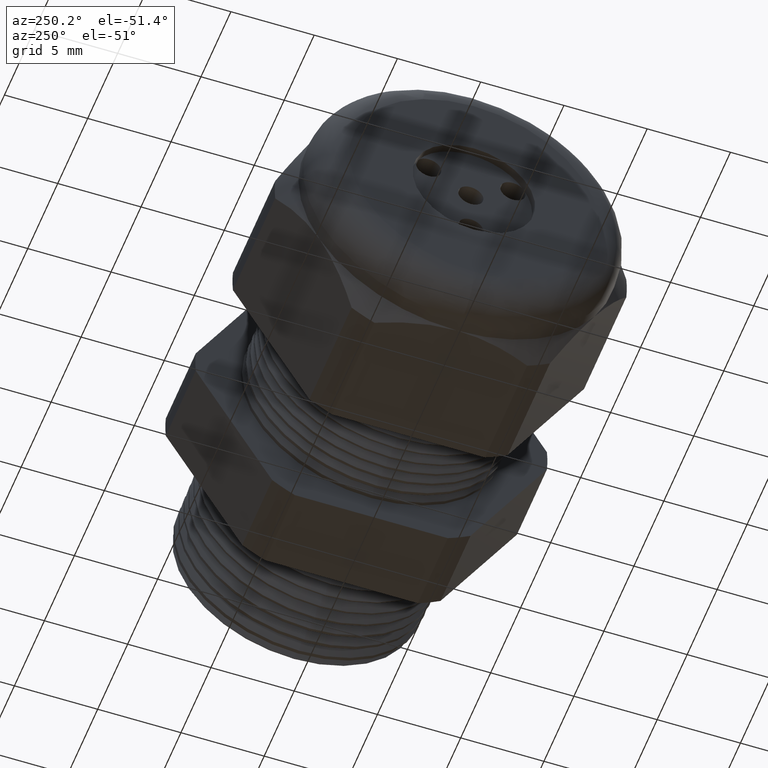
[diagram: clean part render]
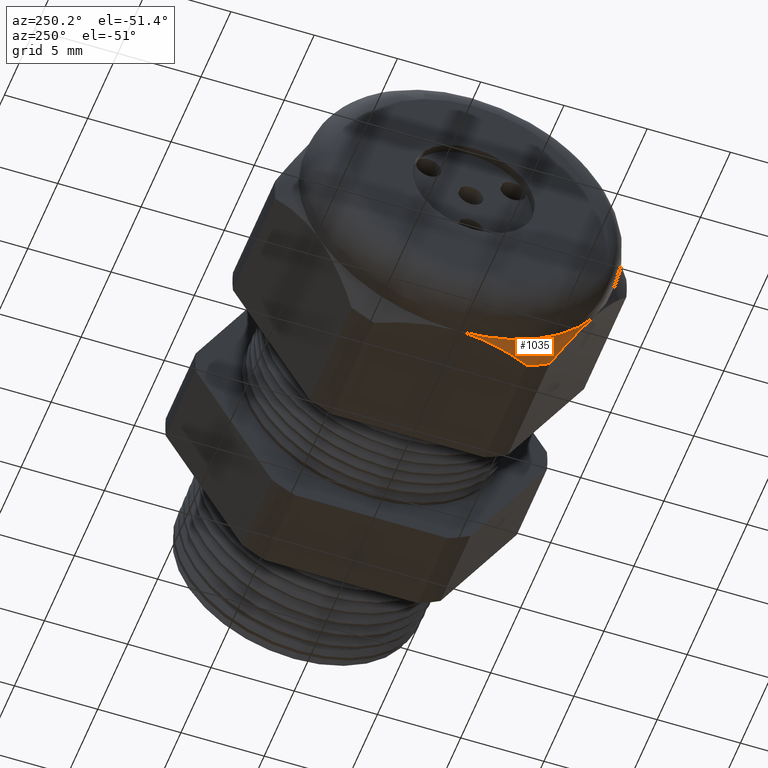
[diagram: same view with one face highlighted and labeled with its STEP entity id]
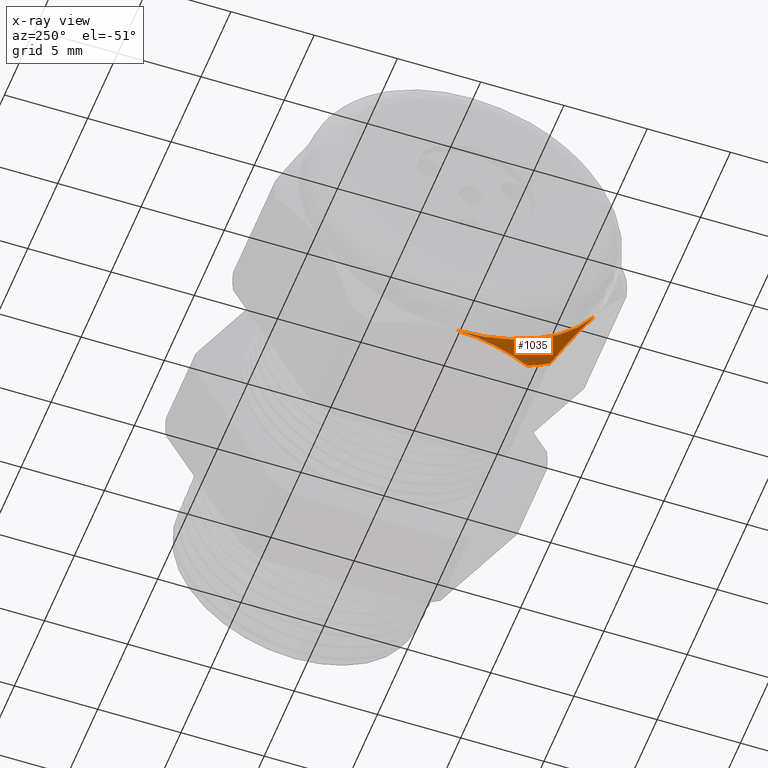
[diagram: x-ray of the same camera — body ghosted, the highlighted face saturated]
A machine part, auxiliary view. The second image highlights one B-rep face of the part: STEP entity #1035.
The next image is the same camera in x-ray: the body ghosted, the highlighted face saturated — about 0% of this face is hidden behind the body in this view.
In plain terms, the highlighted conical surface has half-angle 45 deg.
Its self-contained STEP definition (entity closure, byte-faithful):
#266 = VERTEX_POINT ( 'NONE', #1968 ) ;
#707 = EDGE_CURVE ( 'NONE', #781, #708, #3482, .T. ) ;
#708 = VERTEX_POINT ( 'NONE', #3474 ) ;
#723 = VERTEX_POINT ( 'NONE', #3542 ) ;
#773 = EDGE_CURVE ( 'NONE', #708, #266, #3694, .T. ) ;
#780 = EDGE_CURVE ( 'NONE', #723, #781, #3764, .T. ) ;
#781 = VERTEX_POINT ( 'NONE', #3761 ) ;
#889 = EDGE_CURVE ( 'NONE', #723, #266, #4207, .T. ) ;
#1035 = ADVANCED_FACE ( 'NONE', ( #2657 ), #2656, .T. ) ;
#1036 = EDGE_LOOP ( 'NONE', ( #1037, #1038, #1039, #1040 ) ) ;
#1037 = ORIENTED_EDGE ( 'NONE', *, *, #889, .T. ) ;
#1038 = ORIENTED_EDGE ( 'NONE', *, *, #773, .F. ) ;
#1039 = ORIENTED_EDGE ( 'NONE', *, *, #707, .F. ) ;
#1040 = ORIENTED_EDGE ( 'NONE', *, *, #780, .F. ) ;
#1968 = CARTESIAN_POINT ( 'NONE',  ( -1.069763779527559200, 0.0000000000000000000, -0.3750000000000001100 ) ) ;
#2645 = DIRECTION ( 'NONE',  ( 0.0000000000000000000, 0.0000000000000000000, 1.000000000000000000 ) ) ;
#2646 = DIRECTION ( 'NONE',  ( 1.000000000000000000, 0.0000000000000000000, 0.0000000000000000000 ) ) ;
#2648 = CARTESIAN_POINT ( 'NONE',  ( -1.069763779527559200, 0.0000000000000000000, 0.0000000000000000000 ) ) ;
#2649 = AXIS2_PLACEMENT_3D ( 'NONE', #2648, #2646, #2645 ) ;
#2656 = CONICAL_SURFACE ( 'NONE', #2649, 0.3749999999999998300, 0.7853981633974501700 ) ;
#2657 = FACE_OUTER_BOUND ( 'NONE', #1036, .T. ) ;
#3474 = CARTESIAN_POINT ( 'NONE',  ( -1.028513779527559200, -0.1806628420566883700, -0.3750000000000001100 ) ) ;
#3475 = DIRECTION ( 'NONE',  ( 0.0000000000000000000, 0.0000000000000000000, -1.000000000000000000 ) ) ;
#3476 = DIRECTION ( 'NONE',  ( 1.000000000000000000, 0.0000000000000000000, 0.0000000000000000000 ) ) ;
#3478 = CARTESIAN_POINT ( 'NONE',  ( -1.028513779527559200, 0.0000000000000000000, 0.0000000000000000000 ) ) ;
#3480 = AXIS2_PLACEMENT_3D ( 'NONE', #3478, #3476, #3475 ) ;
#3482 = CIRCLE ( 'NONE', #3480, 0.4162500000000000100 ) ;
#3542 = CARTESIAN_POINT ( 'NONE',  ( -1.069763779527559200, -0.3247595264191645600, -0.1875000000000001900 ) ) ;
#3694 = B_SPLINE_CURVE_WITH_KNOTS ( 'NONE', 3,
 ( #3803, #3802, #3800, #3799, #3798, #3796 ),
 .UNSPECIFIED., .F., .F.,
 ( 4, 2, 4 ),
 ( 0.006665333265152964500, 0.009014704629390876300, 0.01136407599362878800 ),
 .UNSPECIFIED. ) ;
#3748 = CARTESIAN_POINT ( 'NONE',  ( -1.041003202145915700, -0.2488160174420975000, -0.3190380160533434200 ) ) ;
#3749 = CARTESIAN_POINT ( 'NONE',  ( -1.051459219999150200, -0.2636869420682233500, -0.2932808190453660100 ) ) ;
#3750 = CARTESIAN_POINT ( 'NONE',  ( -1.065817769005222800, -0.2938118100972367800, -0.2411030170478076800 ) ) ;
#3751 = CARTESIAN_POINT ( 'NONE',  ( -1.069763779527558500, -0.3091297520026593500, -0.2145715634002272300 ) ) ;
#3753 = CARTESIAN_POINT ( 'NONE',  ( -1.069763779527559200, -0.3247595264191645600, -0.1875000000000001900 ) ) ;
#3761 = CARTESIAN_POINT ( 'NONE',  ( -1.028513779527559200, -0.2344281053908201800, -0.3439586107409879900 ) ) ;
#3764 = B_SPLINE_CURVE_WITH_KNOTS ( 'NONE', 3,
 ( #3753, #3751, #3750, #3749, #3748, #3874 ),
 .UNSPECIFIED., .F., .F.,
 ( 4, 2, 4 ),
 ( 0.004709976344604661000, 0.007063225540252132300, 0.009416474735899602700 ),
 .UNSPECIFIED. ) ;
#3796 = CARTESIAN_POINT ( 'NONE',  ( -1.069763779527559200, 0.0000000000000000000, -0.3750000000000001100 ) ) ;
#3798 = CARTESIAN_POINT ( 'NONE',  ( -1.069763779527559000, -0.03141195411055319700, -0.3750000000000001100 ) ) ;
#3799 = CARTESIAN_POINT ( 'NONE',  ( -1.065781561248279100, -0.06212512060126249700, -0.3750000000000001100 ) ) ;
#3800 = CARTESIAN_POINT ( 'NONE',  ( -1.051374803848830400, -0.1224209746056496600, -0.3750000000000001700 ) ) ;
#3802 = CARTESIAN_POINT ( 'NONE',  ( -1.040864619919063900, -0.1522063135617430000, -0.3750000000000000600 ) ) ;
#3803 = CARTESIAN_POINT ( 'NONE',  ( -1.028513779527559200, -0.1806628420566883700, -0.3750000000000001100 ) ) ;
#3874 = CARTESIAN_POINT ( 'NONE',  ( -1.028513779527559200, -0.2344281053908201800, -0.3439586107409879900 ) ) ;
#4202 = DIRECTION ( 'NONE',  ( 0.0000000000000000000, 0.0000000000000000000, -1.000000000000000000 ) ) ;
#4203 = DIRECTION ( 'NONE',  ( 1.000000000000000000, 0.0000000000000000000, 0.0000000000000000000 ) ) ;
#4205 = CARTESIAN_POINT ( 'NONE',  ( -1.069763779527559000, 0.0000000000000000000, 0.0000000000000000000 ) ) ;
#4206 = AXIS2_PLACEMENT_3D ( 'NONE', #4205, #4203, #4202 ) ;
#4207 = CIRCLE ( 'NONE', #4206, 0.3750000000000001100 ) ;